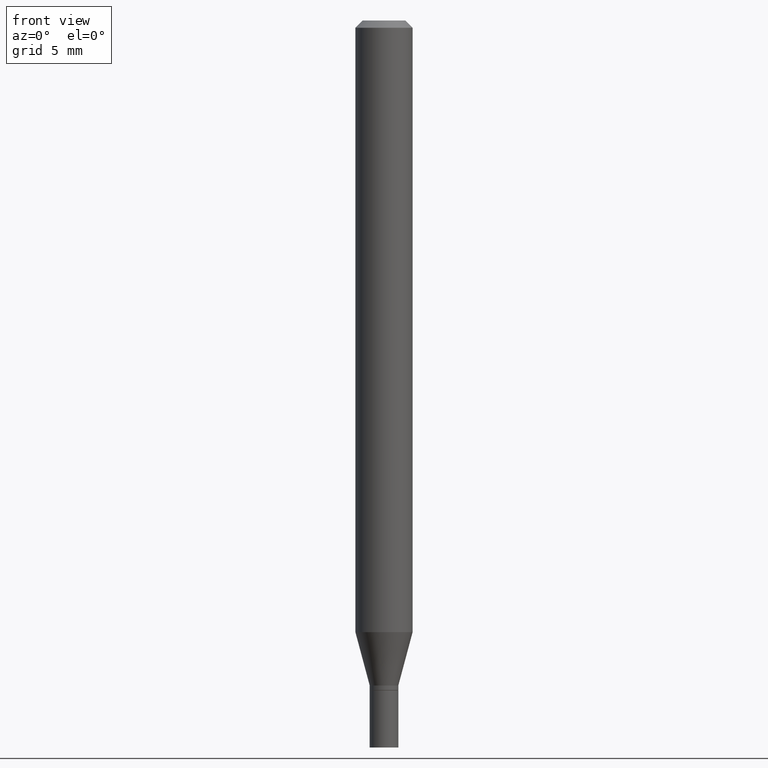
[diagram: clean part render]
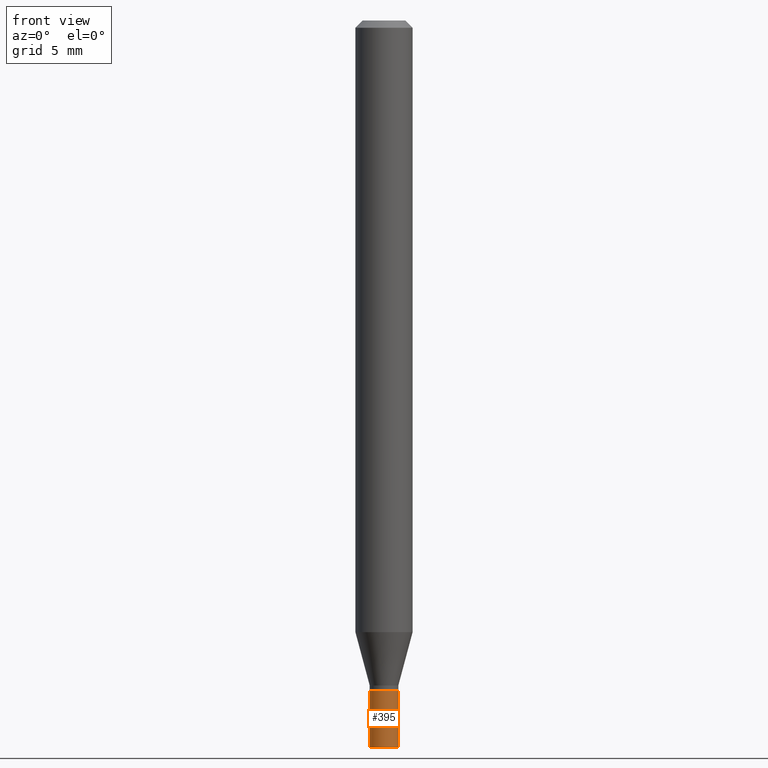
[diagram: same view with one face highlighted and labeled with its STEP entity id]
A machine part, front view. The second image highlights one B-rep face of the part: STEP entity #395.
In plain terms, the highlighted cylindrical surface (edge-blend (fillet) strip) has radius 0.7506 mm, axis along (-0, 0, 1).
Its self-contained STEP definition (entity closure, byte-faithful):
#12 = EDGE_CURVE ( 'NONE', #414, #122, #199, .T. ) ;
#15 = DIRECTION ( 'NONE',  ( -2.445468806185136877E-29, 3.491481338843145188E-15, 1.000000000000000000 ) ) ;
#19 = LINE ( 'NONE', #339, #189 ) ;
#28 = CARTESIAN_POINT ( 'NONE',  ( -0.02954999999999999988, -4.821084656788921754E-15, -1.381900000000000128 ) ) ;
#72 = EDGE_LOOP ( 'NONE', ( #211, #451, #106, #153 ) ) ;
#82 = CARTESIAN_POINT ( 'NONE',  ( -0.02954999999999999988, 2.099653784171096041E-16, -1.453545319170324550E-30 ) ) ;
#89 = CIRCLE ( 'NONE', #372, 0.02954999999999999988 ) ;
#92 = CARTESIAN_POINT ( 'NONE',  ( 0.02954999999999999988, -5.443568555390347787E-15, -1.500000000000000222 ) ) ;
#105 = CARTESIAN_POINT ( 'NONE',  ( 0.02954999999999999988, -5.031224609272972078E-15, -1.381900000000000128 ) ) ;
#106 = ORIENTED_EDGE ( 'NONE', *, *, #351, .T. ) ;
#122 = VERTEX_POINT ( 'NONE', #28 ) ;
#148 = CIRCLE ( 'NONE', #348, 0.02954999999999999988 ) ;
#153 = ORIENTED_EDGE ( 'NONE', *, *, #385, .F. ) ;
#168 = FACE_OUTER_BOUND ( 'NONE', #72, .T. ) ;
#189 = VECTOR ( 'NONE', #15, 39.37007874015748143 ) ;
#197 = DIRECTION ( 'NONE',  ( -2.445468806185136597E-29, 3.491481338843145583E-15, 1.000000000000000000 ) ) ;
#199 = LINE ( 'NONE', #82, #410 ) ;
#211 = ORIENTED_EDGE ( 'NONE', *, *, #12, .F. ) ;
#225 = DIRECTION ( 'NONE',  ( -2.445468806185136877E-29, 3.491481338843145188E-15, 1.000000000000000000 ) ) ;
#235 = DIRECTION ( 'NONE',  ( 1.000000000000000000, -6.982962677686261977E-15, 0.000000000000000000 ) ) ;
#236 = CYLINDRICAL_SURFACE ( 'NONE', #272, 0.02954999999999999988 ) ;
#266 = CARTESIAN_POINT ( 'NONE',  ( 0.000000000000000000, 0.000000000000000000, 0.000000000000000000 ) ) ;
#272 = AXIS2_PLACEMENT_3D ( 'NONE', #266, #305, #416 ) ;
#274 = CARTESIAN_POINT ( 'NONE',  ( 3.379393343267239894E-29, -4.824878062147343257E-15, -1.381900000000000128 ) ) ;
#275 = DIRECTION ( 'NONE',  ( -2.445468806185136597E-29, 3.491481338843145583E-15, 1.000000000000000000 ) ) ;
#288 = VERTEX_POINT ( 'NONE', #92 ) ;
#295 = EDGE_CURVE ( 'NONE', #414, #288, #89, .T. ) ;
#305 = DIRECTION ( 'NONE',  ( -2.445468806185136597E-29, 3.491481338843145583E-15, 1.000000000000000000 ) ) ;
#307 = CARTESIAN_POINT ( 'NONE',  ( 3.668203209277704895E-29, -5.237222008264718177E-15, -1.500000000000000222 ) ) ;
#321 = VERTEX_POINT ( 'NONE', #105 ) ;
#339 = CARTESIAN_POINT ( 'NONE',  ( 0.02954999999999999988, -2.063465471256291914E-16, 1.440910237247699070E-30 ) ) ;
#348 = AXIS2_PLACEMENT_3D ( 'NONE', #274, #197, #235 ) ;
#351 = EDGE_CURVE ( 'NONE', #288, #321, #19, .T. ) ;
#372 = AXIS2_PLACEMENT_3D ( 'NONE', #307, #275, #448 ) ;
#381 = CARTESIAN_POINT ( 'NONE',  ( -0.02954999999999999988, -4.821084656788921754E-15, -1.500000000000000222 ) ) ;
#385 = EDGE_CURVE ( 'NONE', #122, #321, #148, .T. ) ;
#395 = ADVANCED_FACE ( 'NONE', ( #168 ), #236, .T. ) ;
#410 = VECTOR ( 'NONE', #225, 39.37007874015748143 ) ;
#414 = VERTEX_POINT ( 'NONE', #381 ) ;
#416 = DIRECTION ( 'NONE',  ( 1.000000000000000000, -6.982962677686266711E-15, 4.876176775795935793E-29 ) ) ;
#448 = DIRECTION ( 'NONE',  ( 1.000000000000000000, -6.982962677686261977E-15, 0.000000000000000000 ) ) ;
#451 = ORIENTED_EDGE ( 'NONE', *, *, #295, .T. ) ;